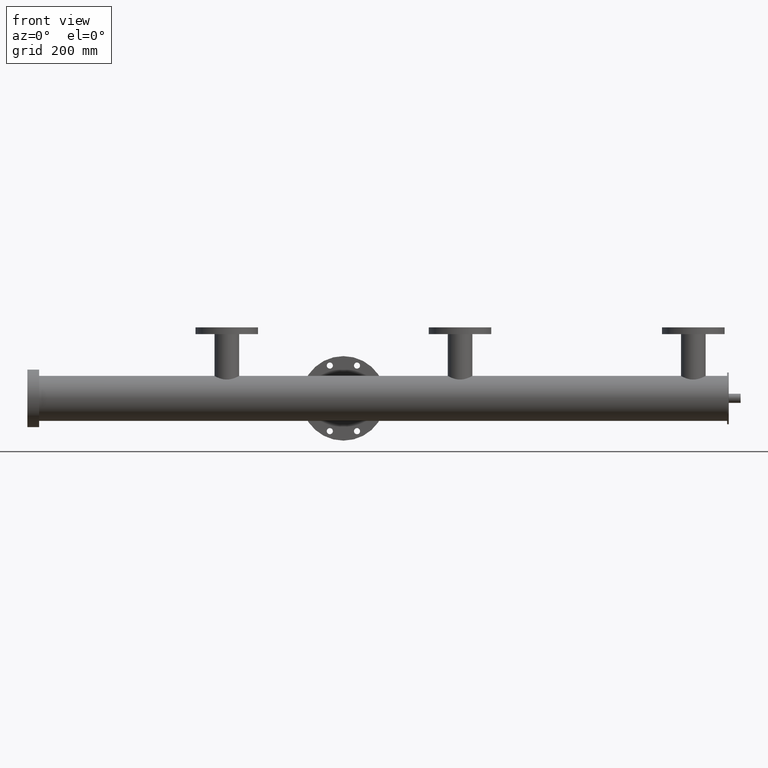
[diagram: clean part render]
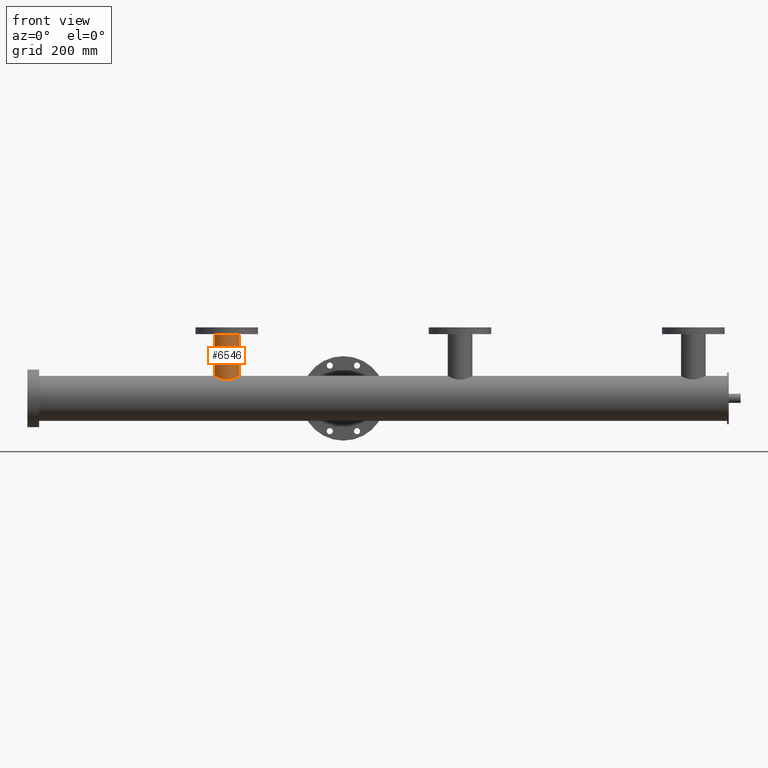
[diagram: same view with one face highlighted and labeled with its STEP entity id]
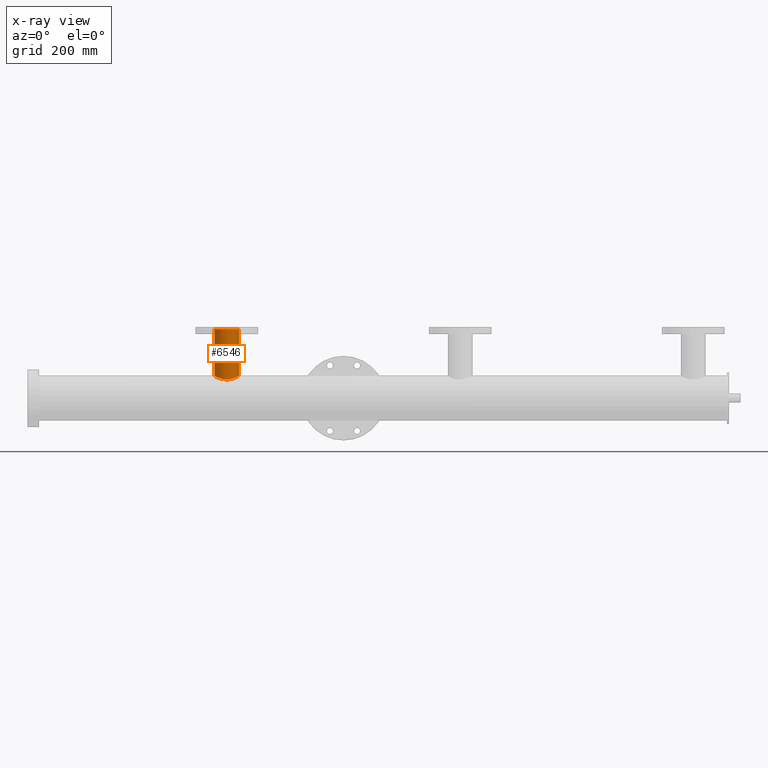
[diagram: x-ray of the same camera — body ghosted, the highlighted face saturated]
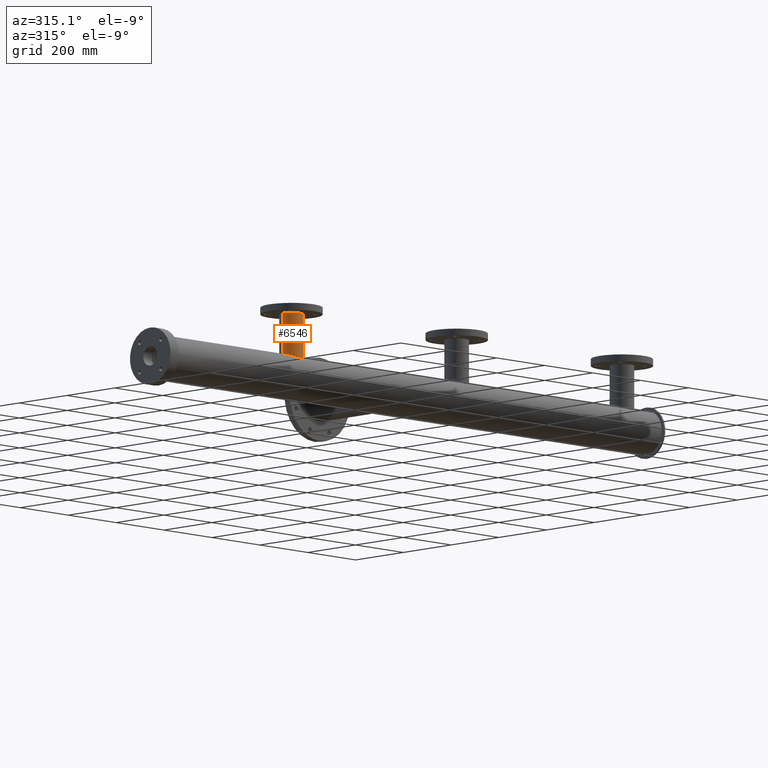
[diagram: same view with one face highlighted and labeled with its STEP entity id]
A machine part, front view. The second image highlights one B-rep face of the part: STEP entity #6546.
The next image is the same camera in x-ray: the body ghosted, the highlighted face saturated — about 0% of this face is hidden behind the body in this view.
A second angle (auxiliary view) of the same face is appended — the face is thin or edge-on in the first view.
In plain terms, the highlighted cylindrical surface (edge-blend (fillet) strip) has radius 36.5 mm, axis along (-0, 0, 1).
Its self-contained STEP definition (entity closure, byte-faithful):
#223 = CARTESIAN_POINT ( 'NONE',  ( -446.1746397925884366, -32.73136354932539405, 57.89680246477973924 ) ) ;
#316 = CARTESIAN_POINT ( 'NONE',  ( -428.6312144138625513, -13.62030388664082814, 65.09266634330057855 ) ) ;
#375 = CARTESIAN_POINT ( 'NONE',  ( -435.1172722080606832, -24.16220145624826898, 61.96264242511791309 ) ) ;
#404 = CIRCLE ( 'NONE', #4155, 36.50000000000003553 ) ;
#471 = EDGE_CURVE ( 'NONE', #7426, #5789, #404, .T. ) ;
#744 = CARTESIAN_POINT ( 'NONE',  ( -492.4415532853185482, -20.88314327807827198, 63.13803779419152562 ) ) ;
#789 = CARTESIAN_POINT ( 'NONE',  ( -491.3892899691717275, -22.31610199020863305, 62.64577439605344011 ) ) ;
#805 = ORIENTED_EDGE ( 'NONE', *, *, #471, .T. ) ;
#1011 = VECTOR ( 'NONE', #8399, 1000.000000000000000 ) ;
#1072 = CARTESIAN_POINT ( 'NONE',  ( -427.2670355281362049, -9.610676404736869571, 65.81238094299403940 ) ) ;
#1120 = CARTESIAN_POINT ( 'NONE',  ( -427.8050092724421916, -11.35239358121155639, 65.52647790445352882 ) ) ;
#1216 = VERTEX_POINT ( 'NONE', #5563 ) ;
#1220 = CARTESIAN_POINT ( 'NONE',  ( -487.4682972998663786, -26.64948028280324266, 60.93320427412295714 ) ) ;
#1230 = EDGE_CURVE ( 'NONE', #1216, #7426, #9410, .T. ) ;
#1231 = DIRECTION ( 'NONE',  ( -1.000000000000000000, -1.084202172485503832E-19, 0.000000000000000000 ) ) ;
#1262 = CARTESIAN_POINT ( 'NONE',  ( -474.3874206867271255, -34.53103930924608989, 56.83335982775295747 ) ) ;
#1436 = CARTESIAN_POINT ( 'NONE',  ( -468.5469174791195428, -36.01588559328840944, 55.90336826426594286 ) ) ;
#1493 = CARTESIAN_POINT ( 'NONE',  ( -475.5274182025635810, -34.11690965600724468, 57.08392023460891096 ) ) ;
#1538 = CARTESIAN_POINT ( 'NONE',  ( -478.8319195971638464, -32.72960434032714971, 57.89795242523767627 ) ) ;
#1663 = FACE_OUTER_BOUND ( 'NONE', #5009, .T. ) ;
#1760 = CARTESIAN_POINT ( 'NONE',  ( -454.6539090356722568, -35.65182631780419342, 56.13570618462102146 ) ) ;
#1813 = DIRECTION ( 'NONE',  ( -3.388131789017201356E-21, 6.576085869796570015E-22, 1.000000000000000000 ) ) ;
#2191 = CARTESIAN_POINT ( 'NONE',  ( -463.0629363895629922, -36.50076084212238925, 55.58726885576268728 ) ) ;
#2300 = CARTESIAN_POINT ( 'NONE',  ( -467.3467198783593517, -36.19745684051819978, 55.78543901371828184 ) ) ;
#2466 = CARTESIAN_POINT ( 'NONE',  ( -425.9999999999997726, 3.944103039771244282E-18, -1.942891529762126937E-13 ) ) ;
#2477 = CARTESIAN_POINT ( 'NONE',  ( -429.7916165127267618, -16.37463557934484015, 64.49191843912718980 ) ) ;
#2628 = CARTESIAN_POINT ( 'NONE',  ( -432.5795880977948968, -20.91340920649460955, 63.12801359587080441 ) ) ;
#2659 = VERTEX_POINT ( 'NONE', #7627 ) ;
#2671 = CARTESIAN_POINT ( 'NONE',  ( -438.4206400851305148, -27.45559474932512600, 60.57323003898007840 ) ) ;
#2715 = CARTESIAN_POINT ( 'NONE',  ( -485.2457778281886362, -28.55211664004329464, 60.05993587860518801 ) ) ;
#2769 = CARTESIAN_POINT ( 'NONE',  ( -491.0255873845939050, -22.77905236676616596, 62.47878125792775705 ) ) ;
#2948 = CARTESIAN_POINT ( 'NONE',  ( -472.0828869005970887, -35.24020041104041212, 56.39638055830579333 ) ) ;
#3249 = EDGE_CURVE ( 'NONE', #1216, #2659, #4377, .T. ) ;
#3271 = CARTESIAN_POINT ( 'NONE',  ( -449.4498156995459226, -34.10784478897990368, 57.08929757591874932 ) ) ;
#3314 = CYLINDRICAL_SURFACE ( 'NONE', #9630, 36.50000000000003553 ) ;
#3745 = CARTESIAN_POINT ( 'NONE',  ( -492.0968313421486187, -21.36883378812922984, 62.97518876711627200 ) ) ;
#4014 = CARTESIAN_POINT ( 'NONE',  ( -426.2474205395901663, -4.883271141504574864, 66.36329022412418510 ) ) ;
#4111 = CARTESIAN_POINT ( 'NONE',  ( -427.9989353332134101, -11.92854431989900732, 65.42394513391464272 ) ) ;
#4155 = AXIS2_PLACEMENT_3D ( 'NONE', #8223, #5077, #1231 ) ;
#4266 = CARTESIAN_POINT ( 'NONE',  ( -483.3528704055377716, -29.96257044738506892, 59.36860265998994635 ) ) ;
#4306 = CARTESIAN_POINT ( 'NONE',  ( -497.0164798287257781, -11.93003250258585091, 65.43161238837620886 ) ) ;
#4308 = EDGE_CURVE ( 'NONE', #2659, #5789, #4920, .T. ) ;
#4377 = B_SPLINE_CURVE_WITH_KNOTS ( 'NONE', 3,
 ( #6481, #7925, #4014, #9322, #1072, #1120, #4111, #7971, #316, #2477, #4917, #2628, #5528, #5684, #7227, #375, #8570, #9526, #2671, #5732, #4766, #7817, #223, #3271, #6328, #9376, #5575, #8618, #1760, #4817, #5064, #2191, #9850, #8119, #8394, #2300, #1436, #9045, #2948, #1262, #1493, #1538, #8076, #4266, #4488, #5999, #2715, #7321, #1220, #5246, #7639, #2769, #789, #3745, #744, #9803, #7596, #5777, #4306, #6810, #9571, #6045, #7366, #9147, #8291, #6097 ),
 .UNSPECIFIED., .F., .F.,
 ( 4, 2, 2, 2, 2, 2, 2, 2, 2, 2, 2, 2, 2, 2, 2, 2, 2, 2, 2, 2, 2, 2, 2, 2, 2, 2, 2, 2, 2, 2, 2, 2, 4 ),
 ( 6.776988778967367579E-18, 0.007285960053230426323, 0.01092894007984565423, 0.01275043009315324390, 0.01457192010646083530, 0.02185788015969103437, 0.02367937017299859281, 0.02550086018630615126, 0.02914384021292137916, 0.03278682023953660707, 0.03642980026615183498, 0.04371576031938229079, 0.04735874034599746318, 0.04918023035930511183, 0.05100172037261276742, 0.05828768042584338976, 0.06010917043915104535, 0.06193066045245870094, 0.06557364047907417171, 0.06921662050568966329, 0.07285960053230514100, 0.08014556058553594375, 0.08196705059884372424, 0.08378854061215150473, 0.08743152063876689917, 0.09107450066538230748, 0.09289599067868996307, 0.09471748069199760478, 0.1020034407452281022, 0.1056464207718433301, 0.1074679107851509580, 0.1092894007984585719, 0.1165753608516890971 ),
 .UNSPECIFIED. ) ;
#4488 = CARTESIAN_POINT ( 'NONE',  ( -483.8359473295401472, -29.62053351235479326, 59.54014089832843837 ) ) ;
#4709 = ORIENTED_EDGE ( 'NONE', *, *, #1230, .T. ) ;
#4766 = CARTESIAN_POINT ( 'NONE',  ( -441.1840322865140251, -29.65234178153601263, 59.52755864756199600 ) ) ;
#4800 = DIRECTION ( 'NONE',  ( -3.388131789017201356E-21, 6.576085869796570015E-22, 1.000000000000000000 ) ) ;
#4817 = CARTESIAN_POINT ( 'NONE',  ( -457.6097841438391356, -36.25131170490510613, 55.75317083296295095 ) ) ;
#4873 = CARTESIAN_POINT ( 'NONE',  ( -498.9999999999998295, 4.465990244068469434E-15, -1.942889056425920954E-13 ) ) ;
#4917 = CARTESIAN_POINT ( 'NONE',  ( -430.9204638385528483, -18.45563936584375142, 63.92110714605968269 ) ) ;
#4920 = LINE ( 'NONE', #4873, #1011 ) ;
#4927 = CARTESIAN_POINT ( 'NONE',  ( -425.9999999999997726, 4.029444285396952138E-18, 204.9999999999998295 ) ) ;
#5009 = EDGE_LOOP ( 'NONE', ( #7811, #7767, #4709, #805 ) ) ;
#5064 = CARTESIAN_POINT ( 'NONE',  ( -460.0115481564528750, -36.49680312496519008, 55.58986756598980605 ) ) ;
#5077 = DIRECTION ( 'NONE',  ( 3.388131789017201356E-21, -6.576085869796570015E-22, -1.000000000000000000 ) ) ;
#5246 = CARTESIAN_POINT ( 'NONE',  ( -489.1189528856342008, -25.00084031928543382, 61.62798200318668052 ) ) ;
#5528 = CARTESIAN_POINT ( 'NONE',  ( -432.9243687182711255, -21.39815329285656986, 62.96522697485677611 ) ) ;
#5563 = CARTESIAN_POINT ( 'NONE',  ( -425.9999999999997726, -6.987995345068376100E-15, 66.49999999999992895 ) ) ;
#5575 = CARTESIAN_POINT ( 'NONE',  ( -452.8920265963320730, -35.21793909805722222, 56.40902389035976228 ) ) ;
#5684 = CARTESIAN_POINT ( 'NONE',  ( -433.6322758438982987, -22.34397977318705841, 62.63583112113406060 ) ) ;
#5732 = CARTESIAN_POINT ( 'NONE',  ( -440.2327319758279032, -28.94467190500990839, 59.87597054499990179 ) ) ;
#5777 = CARTESIAN_POINT ( 'NONE',  ( -496.6061818786222375, -13.05498333902376018, 65.21561208492853723 ) ) ;
#5789 = VERTEX_POINT ( 'NONE', #6513 ) ;
#5999 = CARTESIAN_POINT ( 'NONE',  ( -484.7828891825963069, -28.91490106643250613, 59.88599903205888353 ) ) ;
#6045 = CARTESIAN_POINT ( 'NONE',  ( -498.0196103571832396, -8.425033365469708713, 65.96685891033591531 ) ) ;
#6097 = CARTESIAN_POINT ( 'NONE',  ( -498.9999999999998295, 4.466033973191208791E-15, 66.49999999999985789 ) ) ;
#6214 = DIRECTION ( 'NONE',  ( 1.000000000000000000, 1.084202172485503832E-19, -3.388131789200905733E-21 ) ) ;
#6328 = CARTESIAN_POINT ( 'NONE',  ( -450.5720539258355757, -34.51720566104334154, 56.84178327523083141 ) ) ;
#6481 = CARTESIAN_POINT ( 'NONE',  ( -425.9999999999997726, -6.987995345068376100E-15, 66.49999999999992895 ) ) ;
#6513 = CARTESIAN_POINT ( 'NONE',  ( -498.9999999999998295, 4.466075585314093838E-15, 204.9999999999998295 ) ) ;
#6546 = ADVANCED_FACE ( 'NONE', ( #1663 ), #3314, .T. ) ;
#6810 = CARTESIAN_POINT ( 'NONE',  ( -497.5520549459459403, -10.19652920783709504, 65.71623609069204974 ) ) ;
#7227 = CARTESIAN_POINT ( 'NONE',  ( -433.9961662760228478, -22.80625798264178172, 62.46885108362418038 ) ) ;
#7321 = CARTESIAN_POINT ( 'NONE',  ( -486.6037705056389200, -27.43416377357489111, 60.58294898335618228 ) ) ;
#7366 = CARTESIAN_POINT ( 'NONE',  ( -498.1552788946858072, -7.830761680522490664, 66.04005331040619353 ) ) ;
#7426 = VERTEX_POINT ( 'NONE', #4927 ) ;
#7596 = CARTESIAN_POINT ( 'NONE',  ( -495.2229929305343035, -16.34358170498832763, 64.49939484544556478 ) ) ;
#7627 = CARTESIAN_POINT ( 'NONE',  ( -498.9999999999998295, 4.466033973191208791E-15, 66.49999999999985789 ) ) ;
#7639 = CARTESIAN_POINT ( 'NONE',  ( -489.9050753004524381, -24.13688665160489677, 61.97252649023652538 ) ) ;
#7767 = ORIENTED_EDGE ( 'NONE', *, *, #3249, .F. ) ;
#7811 = ORIENTED_EDGE ( 'NONE', *, *, #4308, .F. ) ;
#7817 = CARTESIAN_POINT ( 'NONE',  ( -444.1122818553236016, -31.61754627097946369, 58.52133982125106826 ) ) ;
#7925 = CARTESIAN_POINT ( 'NONE',  ( -425.9999999999997726, -2.466774963087613237, 66.49999999999994316 ) ) ;
#7971 = CARTESIAN_POINT ( 'NONE',  ( -428.4118015595399243, -13.06171351000282499, 65.20716530152095913 ) ) ;
#8076 = CARTESIAN_POINT ( 'NONE',  ( -480.9055874796114836, -31.60774685049807431, 58.52679807458739702 ) ) ;
#8119 = CARTESIAN_POINT ( 'NONE',  ( -464.9062721637683921, -36.42580613237711873, 55.63642650185640548 ) ) ;
#8223 = CARTESIAN_POINT ( 'NONE',  ( -462.4999999999997726, -5.293955920339377119E-20, 204.9999999999998295 ) ) ;
#8291 = CARTESIAN_POINT ( 'NONE',  ( -498.9999999999997726, -2.439347182284604898, 66.49999999999985789 ) ) ;
#8305 = VECTOR ( 'NONE', #4800, 1000.000000000000000 ) ;
#8394 = CARTESIAN_POINT ( 'NONE',  ( -465.5207955041921082, -36.37992493597212729, 55.66647405370343904 ) ) ;
#8399 = DIRECTION ( 'NONE',  ( -3.388131789017201356E-21, 6.576085869796570015E-22, 1.000000000000000000 ) ) ;
#8570 = CARTESIAN_POINT ( 'NONE',  ( -435.9038308592263320, -25.02506160343128272, 61.61813730965479152 ) ) ;
#8618 = CARTESIAN_POINT ( 'NONE',  ( -454.0650650197028995, -35.51715443441685949, 56.22110770395249091 ) ) ;
#8669 = CARTESIAN_POINT ( 'NONE',  ( -462.4999999999997726, -1.323488980084844280E-20, -1.942890293094023946E-13 ) ) ;
#9045 = CARTESIAN_POINT ( 'NONE',  ( -470.9150018226786756, -35.53726171770179576, 56.20883941131091177 ) ) ;
#9147 = CARTESIAN_POINT ( 'NONE',  ( -498.7579086187307666, -4.850765658681345904, 66.36619311320848169 ) ) ;
#9322 = CARTESIAN_POINT ( 'NONE',  ( -426.9680842958701419, -8.437679185553045969, 65.97329934575707000 ) ) ;
#9376 = CARTESIAN_POINT ( 'NONE',  ( -452.3057864571443929, -35.05272965535488083, 56.51194649671308667 ) ) ;
#9410 = LINE ( 'NONE', #2466, #8305 ) ;
#9526 = CARTESIAN_POINT ( 'NONE',  ( -437.5555182327670991, -26.67175942048714887, 60.92344214818017889 ) ) ;
#9571 = CARTESIAN_POINT ( 'NONE',  ( -497.7174705588994357, -9.610081923086928768, 65.80466539035815288 ) ) ;
#9630 = AXIS2_PLACEMENT_3D ( 'NONE', #8669, #1813, #6214 ) ;
#9803 = CARTESIAN_POINT ( 'NONE',  ( -494.0994620620056708, -18.42174200114903471, 63.93097259090735207 ) ) ;
#9850 = CARTESIAN_POINT ( 'NONE',  ( -463.6756878863675979, -36.48626119669562229, 55.59679892023009984 ) ) ;